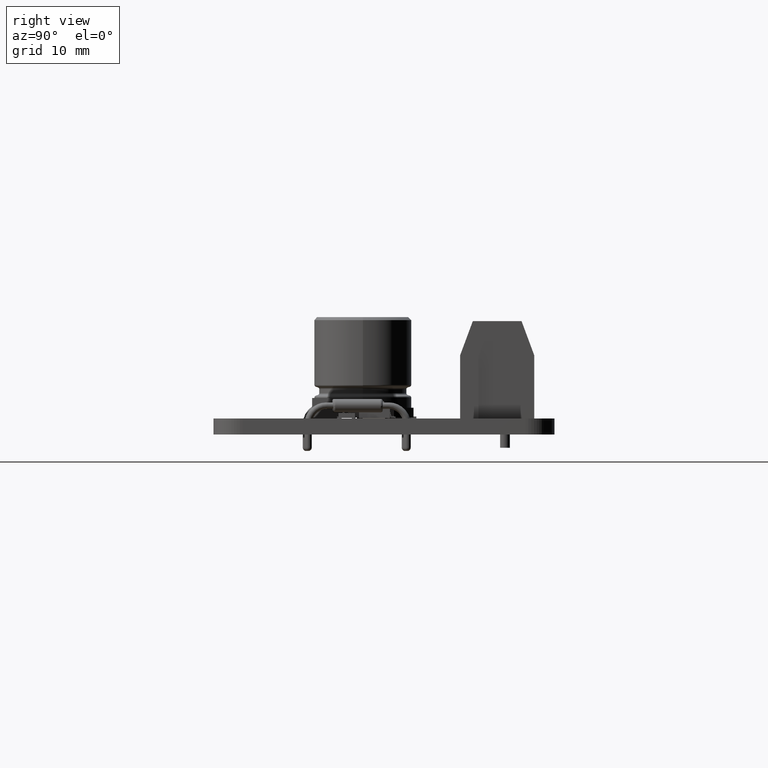
[diagram: clean part render]
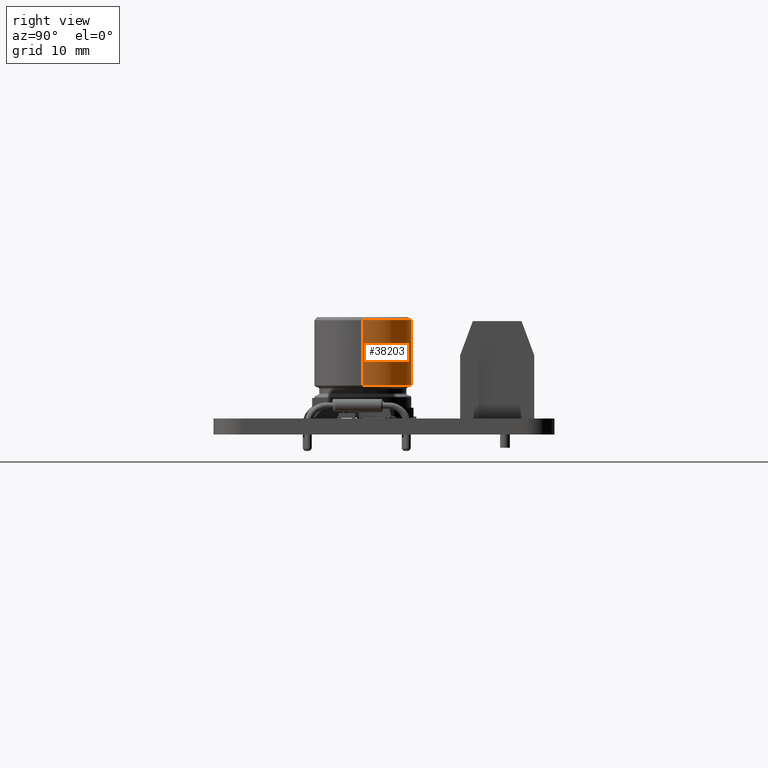
[diagram: same view with one face highlighted and labeled with its STEP entity id]
A machine part, right view. The second image highlights one B-rep face of the part: STEP entity #38203.
In plain terms, the highlighted cylindrical surface (partial cylindrical patch) has radius 5 mm, axis along (-0, -0, -1).
Its self-contained STEP definition (entity closure, byte-faithful):
#38177 = VERTEX_POINT('',#38178);
#38178 = CARTESIAN_POINT('',(6.123233995737E-016,-5.,10.1));
#38184 = EDGE_CURVE('',#38185,#38177,#38187,.T.);
#38185 = VERTEX_POINT('',#38186);
#38186 = CARTESIAN_POINT('',(0.E+000,5.,10.1));
#38187 = CIRCLE('',#38188,5.);
#38188 = AXIS2_PLACEMENT_3D('',#38189,#38190,#38191);
#38189 = CARTESIAN_POINT('',(0.E+000,-1.16341445919E-015,10.1));
#38190 = DIRECTION('',(-0.E+000,1.224646799147E-016,-1.));
#38191 = DIRECTION('',(0.E+000,1.,1.224646799147E-016));
#38203 = ADVANCED_FACE('',(#38204),#38230,.T.);
#38204 = FACE_BOUND('',#38205,.T.);
#38205 = EDGE_LOOP('',(#38206,#38207,#38215,#38224));
#38206 = ORIENTED_EDGE('',*,*,#38184,.T.);
#38207 = ORIENTED_EDGE('',*,*,#38208,.T.);
#38208 = EDGE_CURVE('',#38177,#38209,#38211,.T.);
#38209 = VERTEX_POINT('',#38210);
#38210 = CARTESIAN_POINT('',(6.123233995737E-016,-5.,3.448806130178));
#38211 = LINE('',#38212,#38213);
#38212 = CARTESIAN_POINT('',(6.123233995737E-016,-5.,0.6));
#38213 = VECTOR('',#38214,1.);
#38214 = DIRECTION('',(-0.E+000,1.224646799147E-016,-1.));
#38215 = ORIENTED_EDGE('',*,*,#38216,.F.);
#38216 = EDGE_CURVE('',#38217,#38209,#38219,.T.);
#38217 = VERTEX_POINT('',#38218);
#38218 = CARTESIAN_POINT('',(0.E+000,5.,3.448806130178));
#38219 = CIRCLE('',#38220,5.);
#38220 = AXIS2_PLACEMENT_3D('',#38221,#38222,#38223);
#38221 = CARTESIAN_POINT('',(0.E+000,-3.488781308714E-016,3.448806130178
    ));
#38222 = DIRECTION('',(-0.E+000,1.224646799147E-016,-1.));
#38223 = DIRECTION('',(0.E+000,1.,1.224646799147E-016));
#38224 = ORIENTED_EDGE('',*,*,#38225,.F.);
#38225 = EDGE_CURVE('',#38185,#38217,#38226,.T.);
#38226 = LINE('',#38227,#38228);
#38227 = CARTESIAN_POINT('',(0.E+000,5.,0.6));
#38228 = VECTOR('',#38229,1.);
#38229 = DIRECTION('',(-0.E+000,1.224646799147E-016,-1.));
#38230 = CYLINDRICAL_SURFACE('',#38231,5.);
#38231 = AXIS2_PLACEMENT_3D('',#38232,#38233,#38234);
#38232 = CARTESIAN_POINT('',(0.E+000,0.E+000,0.6));
#38233 = DIRECTION('',(-0.E+000,1.224646799147E-016,-1.));
#38234 = DIRECTION('',(0.E+000,1.,1.224646799147E-016));